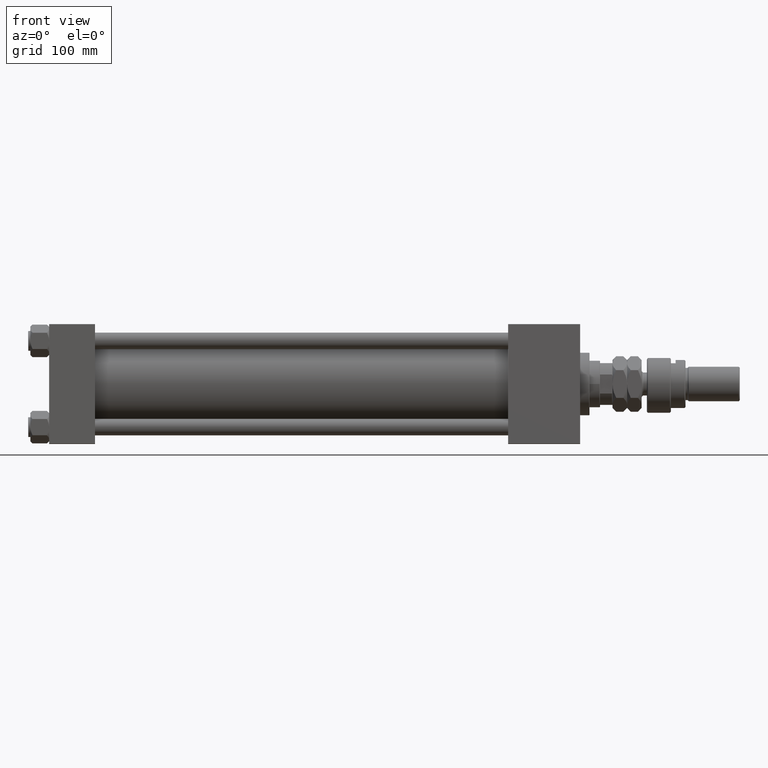
[diagram: clean part render]
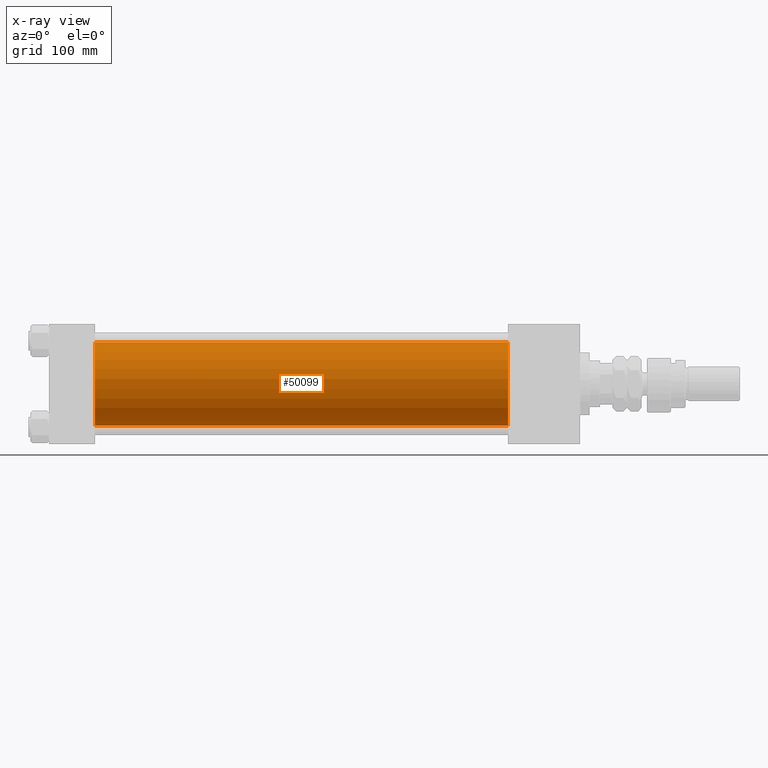
[diagram: x-ray — body ghosted, one internal face saturated and labeled with its STEP entity id]
A machine part, front view, then the same camera in x-ray: the body is ghosted and one INTERNAL B-rep face — a face not visible from any outside direction — is saturated and labeled: STEP entity #50099.
In plain terms, the highlighted cylindrical surface (partial cylindrical patch) has radius 40 mm, axis along (-1, -0, -0).
Its self-contained STEP definition (entity closure, byte-faithful):
#1123 = AXIS2_PLACEMENT_3D ( 'NONE', #18673, #48550, #35238 ) ;
#1860 = AXIS2_PLACEMENT_3D ( 'NONE', #36821, #37609, #24586 ) ;
#2782 = EDGE_CURVE ( 'NONE', #37874, #40553, #31974, .T. ) ;
#6706 = FACE_OUTER_BOUND ( 'NONE', #48956, .T. ) ;
#7244 = CYLINDRICAL_SURFACE ( 'NONE', #1123, 40.00000000000000000 ) ;
#7337 = ORIENTED_EDGE ( 'NONE', *, *, #2782, .F. ) ;
#7585 = EDGE_CURVE ( 'NONE', #40553, #12211, #9509, .T. ) ;
#8034 = EDGE_CURVE ( 'NONE', #51581, #12211, #44259, .T. ) ;
#9191 = ORIENTED_EDGE ( 'NONE', *, *, #23259, .T. ) ;
#9509 = CIRCLE ( 'NONE', #20815, 40.00000000000000000 ) ;
#12211 = VERTEX_POINT ( 'NONE', #31783 ) ;
#16508 = VECTOR ( 'NONE', #35837, 1000.000000000000000 ) ;
#18227 = CARTESIAN_POINT ( 'NONE',  ( 440.0000000000000000, 2.296501982624201990E-15, -40.00000000000000000 ) ) ;
#18673 = CARTESIAN_POINT ( 'NONE',  ( 440.0000000000000000, -2.602085213965210642E-15, 0.000000000000000000 ) ) ;
#18955 = DIRECTION ( 'NONE',  ( -1.000000000000000000, -0.000000000000000000, -0.000000000000000000 ) ) ;
#20815 = AXIS2_PLACEMENT_3D ( 'NONE', #27477, #44056, #47055 ) ;
#23259 = EDGE_CURVE ( 'NONE', #37874, #51581, #48705, .T. ) ;
#24586 = DIRECTION ( 'NONE',  ( 0.000000000000000000, 0.000000000000000000, -1.000000000000000000 ) ) ;
#24809 = ORIENTED_EDGE ( 'NONE', *, *, #7585, .F. ) ;
#25828 = VECTOR ( 'NONE', #18955, 1000.000000000000000 ) ;
#27098 = CARTESIAN_POINT ( 'NONE',  ( 440.0000000000000000, -2.602085213965210642E-15, 40.00000000000000000 ) ) ;
#27477 = CARTESIAN_POINT ( 'NONE',  ( 44.00000000000000000, -2.602085213965210642E-15, 0.000000000000000000 ) ) ;
#31179 = ORIENTED_EDGE ( 'NONE', *, *, #8034, .T. ) ;
#31783 = CARTESIAN_POINT ( 'NONE',  ( 44.00000000000000000, 2.296501982624201990E-15, -40.00000000000000000 ) ) ;
#31974 = LINE ( 'NONE', #27098, #25828 ) ;
#35238 = DIRECTION ( 'NONE',  ( 0.000000000000000000, 0.000000000000000000, 1.000000000000000000 ) ) ;
#35837 = DIRECTION ( 'NONE',  ( -1.000000000000000000, -0.000000000000000000, -0.000000000000000000 ) ) ;
#36026 = CARTESIAN_POINT ( 'NONE',  ( 44.00000000000000000, -2.602085213965210642E-15, 40.00000000000000000 ) ) ;
#36821 = CARTESIAN_POINT ( 'NONE',  ( 440.0000000000000000, -2.602085213965210642E-15, 0.000000000000000000 ) ) ;
#37609 = DIRECTION ( 'NONE',  ( 1.000000000000000000, 0.000000000000000000, 0.000000000000000000 ) ) ;
#37874 = VERTEX_POINT ( 'NONE', #47357 ) ;
#40553 = VERTEX_POINT ( 'NONE', #36026 ) ;
#44056 = DIRECTION ( 'NONE',  ( 1.000000000000000000, 0.000000000000000000, 0.000000000000000000 ) ) ;
#44259 = LINE ( 'NONE', #48347, #16508 ) ;
#47055 = DIRECTION ( 'NONE',  ( 0.000000000000000000, 0.000000000000000000, -1.000000000000000000 ) ) ;
#47357 = CARTESIAN_POINT ( 'NONE',  ( 440.0000000000000000, -2.602085213965210642E-15, 40.00000000000000000 ) ) ;
#48347 = CARTESIAN_POINT ( 'NONE',  ( 440.0000000000000000, 2.296501982624201990E-15, -40.00000000000000000 ) ) ;
#48550 = DIRECTION ( 'NONE',  ( -1.000000000000000000, -0.000000000000000000, -0.000000000000000000 ) ) ;
#48705 = CIRCLE ( 'NONE', #1860, 40.00000000000000000 ) ;
#48956 = EDGE_LOOP ( 'NONE', ( #9191, #31179, #24809, #7337 ) ) ;
#50099 = ADVANCED_FACE ( 'NONE', ( #6706 ), #7244, .F. ) ;
#51581 = VERTEX_POINT ( 'NONE', #18227 ) ;